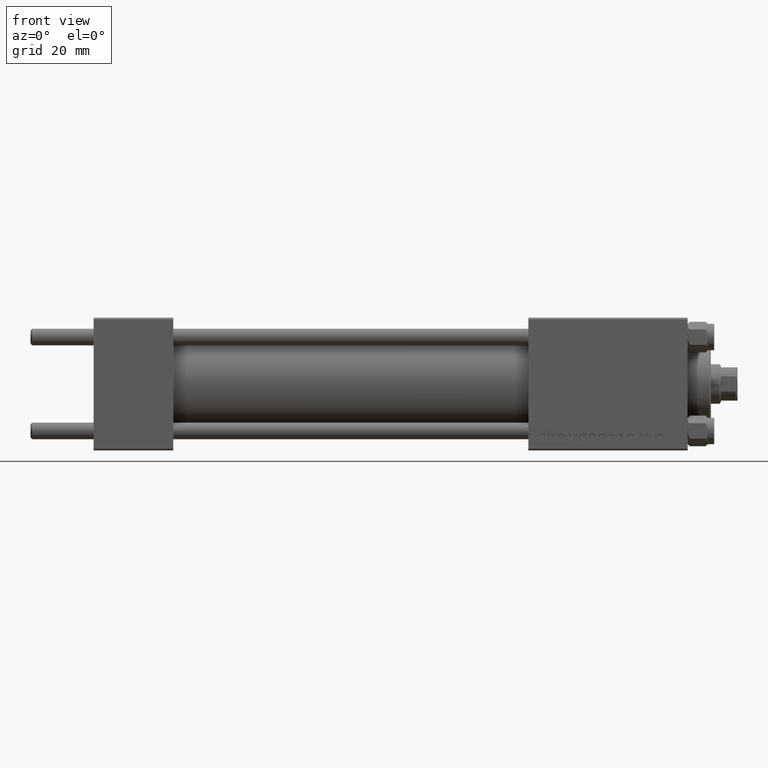
[diagram: clean part render]
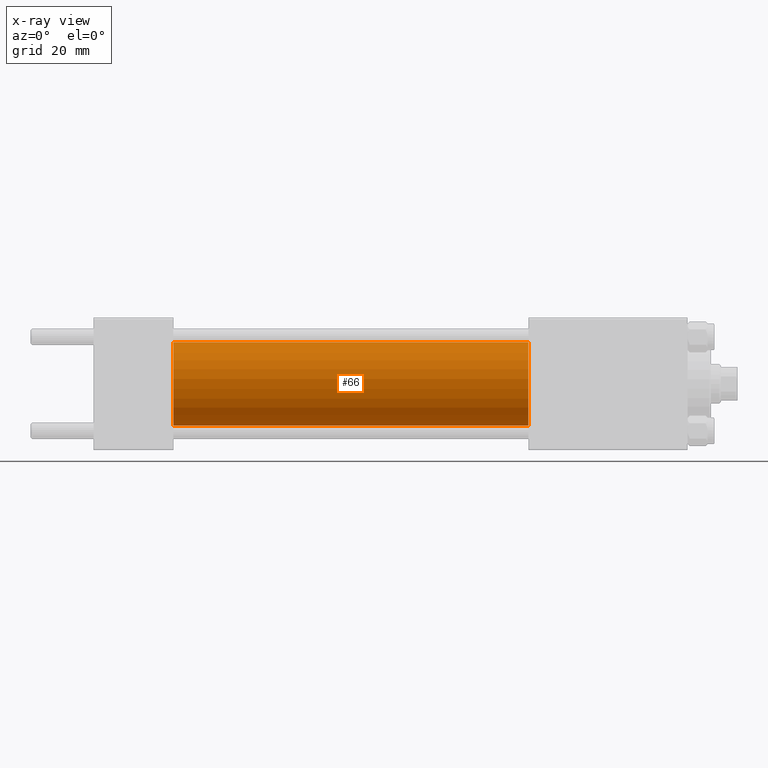
[diagram: x-ray — body ghosted, one internal face saturated and labeled with its STEP entity id]
A machine part, front view, then the same camera in x-ray: the body is ghosted and one INTERNAL B-rep face — a face not visible from any outside direction — is saturated and labeled: STEP entity #66.
In plain terms, the highlighted cylindrical surface (partial cylindrical patch) has radius 12.5 mm, axis along (-1, -0, -0).
Its self-contained STEP definition (entity closure, byte-faithful):
#66 = ADVANCED_FACE ( 'NONE', ( #22925 ), #14371, .F. ) ;
#2485 = VERTEX_POINT ( 'NONE', #47723 ) ;
#3009 = VERTEX_POINT ( 'NONE', #32744 ) ;
#3968 = DIRECTION ( 'NONE',  ( -1.000000000000000000, -0.000000000000000000, -0.000000000000000000 ) ) ;
#5066 = EDGE_CURVE ( 'NONE', #2485, #22914, #42348, .T. ) ;
#5804 = EDGE_CURVE ( 'NONE', #2485, #3009, #11543, .T. ) ;
#6836 = CARTESIAN_POINT ( 'NONE',  ( 131.0000000000000000, 0.000000000000000000, 0.000000000000000000 ) ) ;
#10317 = ORIENTED_EDGE ( 'NONE', *, *, #5066, .T. ) ;
#10855 = DIRECTION ( 'NONE',  ( 0.000000000000000000, 0.000000000000000000, 1.000000000000000000 ) ) ;
#11543 = LINE ( 'NONE', #23116, #47198 ) ;
#12874 = CIRCLE ( 'NONE', #40994, 12.49999999999999645 ) ;
#13346 = EDGE_LOOP ( 'NONE', ( #10317, #18082, #25928, #23011 ) ) ;
#14371 = CYLINDRICAL_SURFACE ( 'NONE', #15643, 12.49999999999999645 ) ;
#15314 = DIRECTION ( 'NONE',  ( -1.000000000000000000, -0.000000000000000000, -0.000000000000000000 ) ) ;
#15643 = AXIS2_PLACEMENT_3D ( 'NONE', #6836, #29737, #10855 ) ;
#18082 = ORIENTED_EDGE ( 'NONE', *, *, #35325, .T. ) ;
#18518 = EDGE_CURVE ( 'NONE', #3009, #26380, #12874, .T. ) ;
#19344 = DIRECTION ( 'NONE',  ( 1.000000000000000000, 0.000000000000000000, 0.000000000000000000 ) ) ;
#20339 = CARTESIAN_POINT ( 'NONE',  ( 131.0000000000000000, 0.000000000000000000, 0.000000000000000000 ) ) ;
#22914 = VERTEX_POINT ( 'NONE', #27213 ) ;
#22925 = FACE_OUTER_BOUND ( 'NONE', #13346, .T. ) ;
#23011 = ORIENTED_EDGE ( 'NONE', *, *, #5804, .F. ) ;
#23116 = CARTESIAN_POINT ( 'NONE',  ( 131.0000000000000000, 0.000000000000000000, 12.49999999999999645 ) ) ;
#25928 = ORIENTED_EDGE ( 'NONE', *, *, #18518, .F. ) ;
#26380 = VERTEX_POINT ( 'NONE', #34381 ) ;
#27213 = CARTESIAN_POINT ( 'NONE',  ( 131.0000000000000000, 1.530808498934191127E-15, -12.49999999999999645 ) ) ;
#27369 = CARTESIAN_POINT ( 'NONE',  ( 131.0000000000000000, 1.530808498934191127E-15, -12.49999999999999645 ) ) ;
#29737 = DIRECTION ( 'NONE',  ( -1.000000000000000000, -0.000000000000000000, -0.000000000000000000 ) ) ;
#31135 = DIRECTION ( 'NONE',  ( 1.000000000000000000, 0.000000000000000000, 0.000000000000000000 ) ) ;
#32744 = CARTESIAN_POINT ( 'NONE',  ( 24.00000000000000000, 0.000000000000000000, 12.49999999999999645 ) ) ;
#34381 = CARTESIAN_POINT ( 'NONE',  ( 24.00000000000000000, 1.530808498934191127E-15, -12.49999999999999645 ) ) ;
#35325 = EDGE_CURVE ( 'NONE', #22914, #26380, #39174, .T. ) ;
#38426 = DIRECTION ( 'NONE',  ( 0.000000000000000000, 0.000000000000000000, -1.000000000000000000 ) ) ;
#38930 = CARTESIAN_POINT ( 'NONE',  ( 24.00000000000000000, 0.000000000000000000, 0.000000000000000000 ) ) ;
#39174 = LINE ( 'NONE', #27369, #48320 ) ;
#40994 = AXIS2_PLACEMENT_3D ( 'NONE', #38930, #31135, #38426 ) ;
#41549 = AXIS2_PLACEMENT_3D ( 'NONE', #20339, #19344, #46784 ) ;
#42348 = CIRCLE ( 'NONE', #41549, 12.49999999999999645 ) ;
#46784 = DIRECTION ( 'NONE',  ( 0.000000000000000000, 0.000000000000000000, -1.000000000000000000 ) ) ;
#47198 = VECTOR ( 'NONE', #15314, 1000.000000000000000 ) ;
#47723 = CARTESIAN_POINT ( 'NONE',  ( 131.0000000000000000, 0.000000000000000000, 12.49999999999999645 ) ) ;
#48320 = VECTOR ( 'NONE', #3968, 1000.000000000000000 ) ;